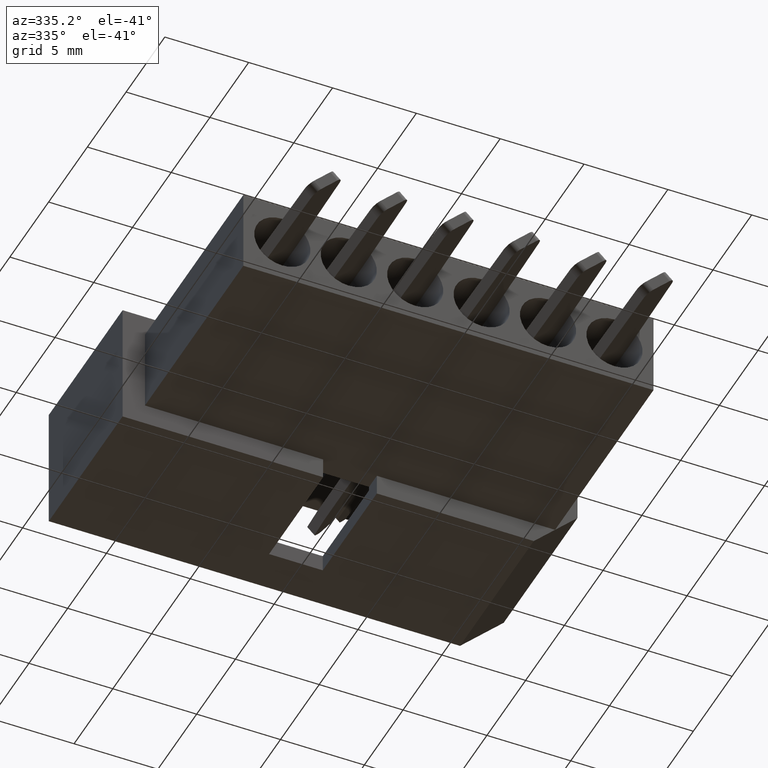
[diagram: clean part render]
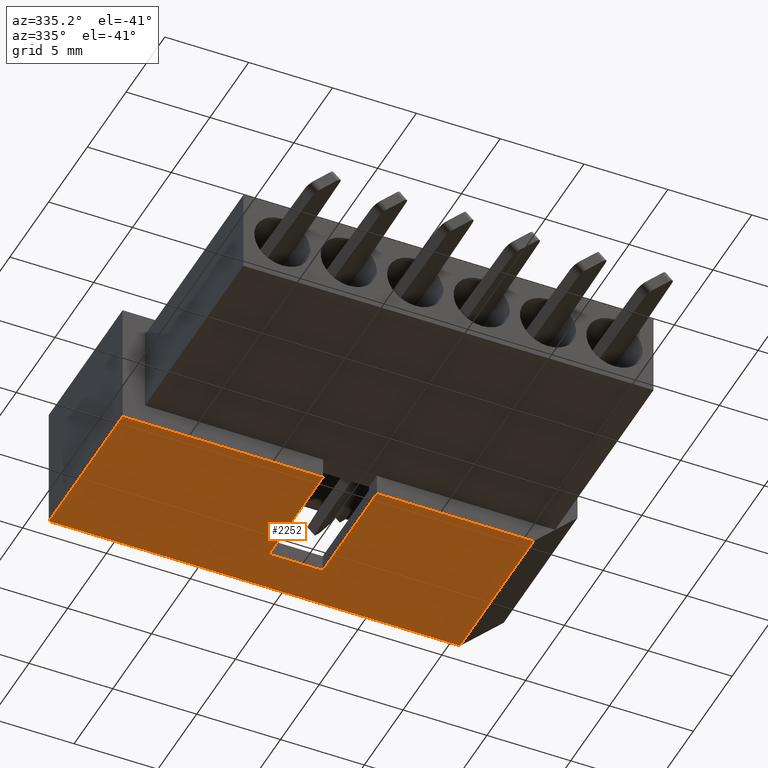
[diagram: same view with one face highlighted and labeled with its STEP entity id]
A machine part, auxiliary view. The second image highlights one B-rep face of the part: STEP entity #2252.
In plain terms, the highlighted planar face has unit normal (0, 0, 1).
Its self-contained STEP definition (entity closure, byte-faithful):
#123 = DIRECTION ( 'NONE',  ( -2.483498176058421200E-016, -1.000000000000000000, -0.0000000000000000000 ) ) ;
#141 = CARTESIAN_POINT ( 'NONE',  ( 11.50619999999999800, 6.985000000000000300, -3.809999999999999600 ) ) ;
#236 = VECTOR ( 'NONE', #1718, 1000.000000000000000 ) ;
#313 = CARTESIAN_POINT ( 'NONE',  ( 20.86609999999999600, 9.525000000000000400, -3.809999999999999600 ) ) ;
#333 = LINE ( 'NONE', #4364, #2555 ) ;
#341 = LINE ( 'NONE', #7106, #8482 ) ;
#406 = VECTOR ( 'NONE', #5687, 1000.000000000000000 ) ;
#444 = VECTOR ( 'NONE', #4533, 1000.000000000000000 ) ;
#521 = VECTOR ( 'NONE', #2780, 1000.000000000000000 ) ;
#797 = CARTESIAN_POINT ( 'NONE',  ( -3.657600000000000400, 0.0000000000000000000, -3.809999999999999600 ) ) ;
#831 = DIRECTION ( 'NONE',  ( -1.000000000000000000, -0.0000000000000000000, -0.0000000000000000000 ) ) ;
#988 = VERTEX_POINT ( 'NONE', #8398 ) ;
#1185 = EDGE_LOOP ( 'NONE', ( #8978, #7944, #8478, #7923, #3686, #4335, #3723, #5959 ) ) ;
#1470 = EDGE_CURVE ( 'NONE', #5500, #2207, #7316, .T. ) ;
#1718 = DIRECTION ( 'NONE',  ( -0.0000000000000000000, -1.000000000000000000, -0.0000000000000000000 ) ) ;
#1896 = EDGE_CURVE ( 'NONE', #7741, #2681, #333, .T. ) ;
#2207 = VERTEX_POINT ( 'NONE', #3875 ) ;
#2221 = VECTOR ( 'NONE', #831, 1000.000000000000000 ) ;
#2252 = ADVANCED_FACE ( 'NONE', ( #6510 ), #7485, .F. ) ;
#2555 = VECTOR ( 'NONE', #123, 1000.000000000000000 ) ;
#2681 = VERTEX_POINT ( 'NONE', #7633 ) ;
#2780 = DIRECTION ( 'NONE',  ( -0.0000000000000000000, -1.000000000000000000, -0.0000000000000000000 ) ) ;
#2813 = CARTESIAN_POINT ( 'NONE',  ( -3.657600000000000400, 9.525000000000000400, -3.809999999999999600 ) ) ;
#3158 = EDGE_CURVE ( 'NONE', #2681, #7424, #5728, .T. ) ;
#3216 = CARTESIAN_POINT ( 'NONE',  ( 8.305799999999996100, 6.985000000000000300, -3.809999999999999600 ) ) ;
#3492 = EDGE_CURVE ( 'NONE', #6855, #988, #5938, .T. ) ;
#3686 = ORIENTED_EDGE ( 'NONE', *, *, #7380, .F. ) ;
#3703 = EDGE_CURVE ( 'NONE', #6855, #8480, #341, .T. ) ;
#3723 = ORIENTED_EDGE ( 'NONE', *, *, #3492, .T. ) ;
#3826 = VECTOR ( 'NONE', #8400, 1000.000000000000000 ) ;
#3875 = CARTESIAN_POINT ( 'NONE',  ( 11.50619999999999800, 6.985000000000000300, -3.809999999999999600 ) ) ;
#4260 = EDGE_CURVE ( 'NONE', #988, #5500, #6027, .T. ) ;
#4335 = ORIENTED_EDGE ( 'NONE', *, *, #3703, .F. ) ;
#4359 = EDGE_CURVE ( 'NONE', #2207, #7741, #6703, .T. ) ;
#4364 = CARTESIAN_POINT ( 'NONE',  ( 8.305799999999996100, 6.985000000000000300, -3.809999999999999600 ) ) ;
#4474 = CARTESIAN_POINT ( 'NONE',  ( -3.657600000000000400, 9.525000000000000400, -3.809999999999999600 ) ) ;
#4533 = DIRECTION ( 'NONE',  ( -1.000000000000000000, 0.0000000000000000000, 0.0000000000000000000 ) ) ;
#4826 = CARTESIAN_POINT ( 'NONE',  ( -3.657600000000000400, 0.0000000000000000000, -3.809999999999999600 ) ) ;
#5232 = DIRECTION ( 'NONE',  ( -1.000000000000000000, -0.0000000000000000000, -0.0000000000000000000 ) ) ;
#5500 = VERTEX_POINT ( 'NONE', #8149 ) ;
#5687 = DIRECTION ( 'NONE',  ( -4.966996352116842500E-016, 1.000000000000000000, 0.0000000000000000000 ) ) ;
#5728 = LINE ( 'NONE', #4826, #3826 ) ;
#5938 = LINE ( 'NONE', #313, #236 ) ;
#5959 = ORIENTED_EDGE ( 'NONE', *, *, #4260, .T. ) ;
#6027 = LINE ( 'NONE', #797, #2221 ) ;
#6137 = CARTESIAN_POINT ( 'NONE',  ( 20.86609999999999600, 9.525000000000000400, -3.809999999999999600 ) ) ;
#6510 = FACE_OUTER_BOUND ( 'NONE', #1185, .T. ) ;
#6703 = LINE ( 'NONE', #141, #444 ) ;
#6855 = VERTEX_POINT ( 'NONE', #6137 ) ;
#7106 = CARTESIAN_POINT ( 'NONE',  ( -3.657600000000000400, 9.525000000000000400, -3.809999999999999600 ) ) ;
#7316 = LINE ( 'NONE', #7892, #406 ) ;
#7380 = EDGE_CURVE ( 'NONE', #8480, #7424, #8332, .T. ) ;
#7424 = VERTEX_POINT ( 'NONE', #8435 ) ;
#7485 = PLANE ( 'NONE',  #7992 ) ;
#7573 = DIRECTION ( 'NONE',  ( 1.000000000000000000, 0.0000000000000000000, -0.0000000000000000000 ) ) ;
#7633 = CARTESIAN_POINT ( 'NONE',  ( 8.305799999999994300, 0.0000000000000000000, -3.809999999999999600 ) ) ;
#7741 = VERTEX_POINT ( 'NONE', #3216 ) ;
#7892 = CARTESIAN_POINT ( 'NONE',  ( 11.50619999999999800, 6.985000000000000300, -3.809999999999999600 ) ) ;
#7923 = ORIENTED_EDGE ( 'NONE', *, *, #3158, .T. ) ;
#7944 = ORIENTED_EDGE ( 'NONE', *, *, #4359, .T. ) ;
#7992 = AXIS2_PLACEMENT_3D ( 'NONE', #8197, #8226, #7573 ) ;
#8149 = CARTESIAN_POINT ( 'NONE',  ( 11.50620000000000200, 3.919359615991196600E-016, -3.809999999999999600 ) ) ;
#8197 = CARTESIAN_POINT ( 'NONE',  ( -3.657600000000000400, 9.525000000000000400, -3.809999999999999600 ) ) ;
#8226 = DIRECTION ( 'NONE',  ( 0.0000000000000000000, 0.0000000000000000000, 1.000000000000000000 ) ) ;
#8332 = LINE ( 'NONE', #2813, #521 ) ;
#8398 = CARTESIAN_POINT ( 'NONE',  ( 20.86609999999999600, 0.0000000000000000000, -3.809999999999999600 ) ) ;
#8400 = DIRECTION ( 'NONE',  ( -1.000000000000000000, -0.0000000000000000000, -0.0000000000000000000 ) ) ;
#8435 = CARTESIAN_POINT ( 'NONE',  ( -3.657600000000000400, 0.0000000000000000000, -3.809999999999999600 ) ) ;
#8478 = ORIENTED_EDGE ( 'NONE', *, *, #1896, .T. ) ;
#8480 = VERTEX_POINT ( 'NONE', #4474 ) ;
#8482 = VECTOR ( 'NONE', #5232, 1000.000000000000000 ) ;
#8978 = ORIENTED_EDGE ( 'NONE', *, *, #1470, .T. ) ;